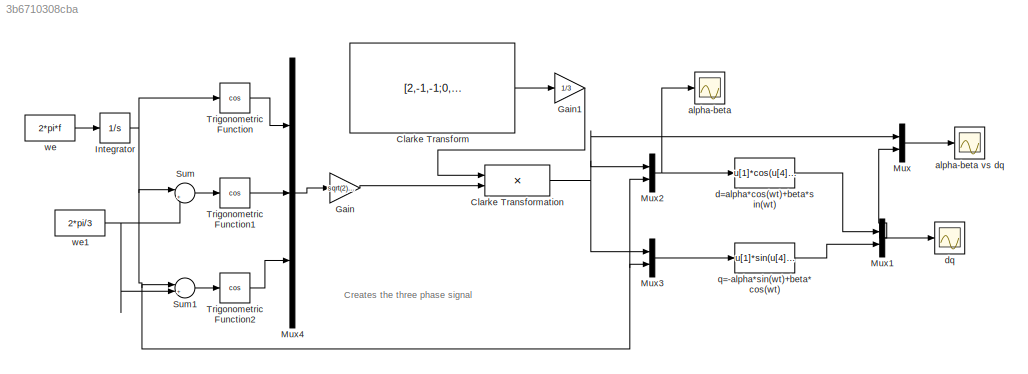
MODEL slx_3b6710308cba
KIND model
BLOCK [Constant] Clarke Transform
  Value = [2,-1,-1;0,-sqrt(3),sqrt(3);1,1,1]
BLOCK [Product] Clarke Transformation
  InputSameDT = off
  Multiplication = Matrix(*)
  OutDataTypeStr = Inherit: Inherit via internal rule
  Ports = [2, 1]
  RndMeth = Floor
  SaturateOnIntegerOverflow = off
BLOCK [Gain] Gain
  Gain = sqrt(2)*Vg
  OutDataTypeStr = Inherit: Inherit via internal rule
  ParamDataTypeStr = Inherit: Inherit via internal rule
  SaturateOnIntegerOverflow = off
BLOCK [Gain] Gain1
  Gain = 1/3
  OutDataTypeStr = Inherit: Inherit via internal rule
  ParamDataTypeStr = Inherit: Inherit via internal rule
  SaturateOnIntegerOverflow = off
BLOCK [Integrator] Integrator
  Ports = [1, 1]
BLOCK [Mux] Mux
  DisplayOption = bar
  Inputs = 2
  Ports = [2, 1]
BLOCK [Mux] Mux1
  DisplayOption = bar
  Inputs = 2
  Ports = [2, 1]
BLOCK [Mux] Mux2
  DisplayOption = bar
  Inputs = 2
  Ports = [2, 1]
BLOCK [Mux] Mux3
  DisplayOption = bar
  Inputs = 2
  Ports = [2, 1]
BLOCK [Mux] Mux4
  DisplayOption = bar
  Inputs = 3
  Ports = [3, 1]
BLOCK [Sum] Sum
  IconShape = round
  InputSameDT = off
  Inputs = |+-
  OutDataTypeStr = Inherit: Inherit via internal rule
  Ports = [2, 1]
  SaturateOnIntegerOverflow = off
BLOCK [Sum] Sum1
  IconShape = round
  InputSameDT = off
  Inputs = |++
  OutDataTypeStr = Inherit: Inherit via internal rule
  Ports = [2, 1]
  SaturateOnIntegerOverflow = off
BLOCK [Trigonometry] Trigonometric Function
  Operator = cos
  Ports = [1, 1]
BLOCK [Trigonometry] Trigonometric Function1
  Operator = cos
  Ports = [1, 1]
BLOCK [Trigonometry] Trigonometric Function2
  Operator = cos
  Ports = [1, 1]
BLOCK [Scope] alpha-beta
  Floating = off
  NumInputPorts = 1
  Ports = [1]
  SaveName = ScopeData11
  ShowLegends = on
BLOCK [Scope] alpha-beta vs dq
  Floating = off
  NumInputPorts = 1
  Ports = [1]
  SaveName = ScopeData10
  ShowLegends = off
BLOCK [Fcn] d=alpha*cos(wt)+beta*sin(wt)
  Expr = u[1]*cos(u[4])-u[2]*sin(u[4])
BLOCK [Scope] dq
  Floating = off
  NumInputPorts = 1
  Ports = [1]
  ShowLegends = off
  ZoomMode = xonly
BLOCK [Fcn] q=-alpha*sin(wt)+beta*cos(wt)
  Expr = u[1]*sin(u[4])+u[2]*cos(u[4])
BLOCK [Constant] we
  Value = 2*pi*f
BLOCK [Constant] we1
  Value = 2*pi/3
ANNOTATION (root): Creates the three phase signal
LINE Clarke Transform:1 -> Gain1:1
NET Clarke Transformation:1 -> Mux2:1, Mux3:1, Mux:1
LINE Gain1:1 -> Clarke Transformation:1
LINE Gain:1 -> Clarke Transformation:2
NET Integrator:1 -> Mux2:2, Mux3:2, Sum1:1, Sum:1, Trigonometric Function:1
NET Mux1:1 -> Mux:2, dq:1
NET Mux2:1 -> alpha-beta:1, d=alpha*cos(wt)+beta*sin(wt):1
LINE Mux3:1 -> q=-alpha*sin(wt)+beta*cos(wt):1
LINE Mux4:1 -> Gain:1
LINE Mux:1 -> alpha-beta vs dq:1
LINE Sum1:1 -> Trigonometric Function2:1
LINE Sum:1 -> Trigonometric Function1:1
LINE Trigonometric Function1:1 -> Mux4:2
LINE Trigonometric Function2:1 -> Mux4:3
LINE Trigonometric Function:1 -> Mux4:1
LINE d=alpha*cos(wt)+beta*sin(wt):1 -> Mux1:1
LINE q=-alpha*sin(wt)+beta*cos(wt):1 -> Mux1:2
NET we1:1 -> Sum1:2, Sum:2
LINE we:1 -> Integrator:1
note: NET lines group one-source signal fan-out (src -> all destinations, sorted); 1:1 wires keep LINE
